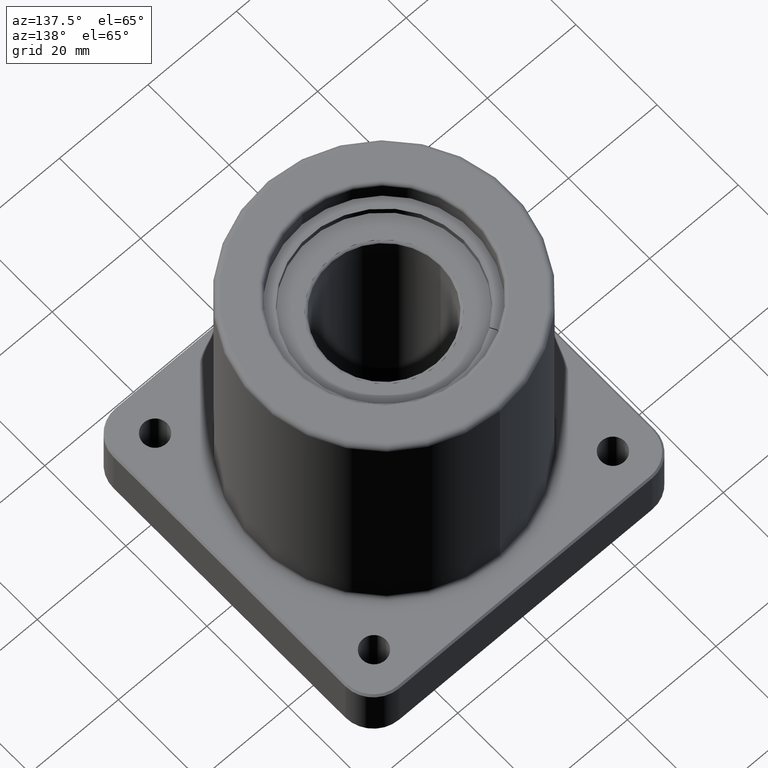
[diagram: clean part render]
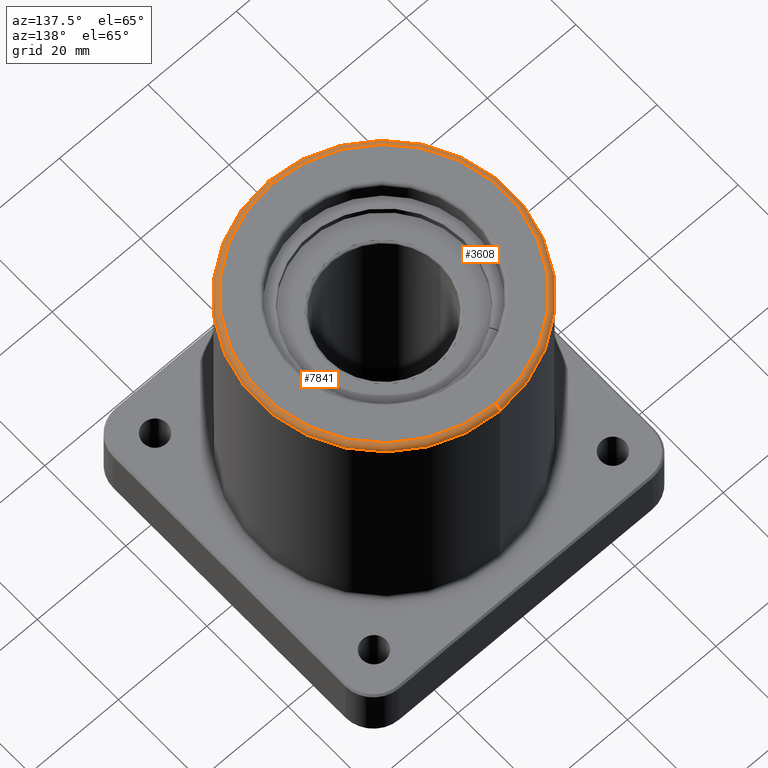
[diagram: same view with one multi-face feature highlighted, each face labeled with its STEP entity id]
A machine part, auxiliary view. The highlighted faces form ONE feature: a constant-radius fillet chain: 2 tangent blend faces with common blend radius 1.143 mm. The faces share edges in the B-rep.
Their STEP definitions:
[1] entity #7841 (Torus):
#2 = DIRECTION ( 'NONE',  ( -1.000000000000000000, -0.000000000000000000, 0.000000000000000000 ) ) ;
#76 = CIRCLE ( 'NONE', #3082, 0.04500000000000019956 ) ;
#261 = CIRCLE ( 'NONE', #2087, 1.125000000000000222 ) ;
#468 = CARTESIAN_POINT ( 'NONE',  ( 0.000000000000000000, -1.080000000000000737, 2.807000000000000384 ) ) ;
#543 = CARTESIAN_POINT ( 'NONE',  ( 1.350173096059957188E-16, 1.079999999999999849, 2.807000000000000384 ) ) ;
#1119 = CARTESIAN_POINT ( 'NONE',  ( 0.000000000000000000, -4.058875246400557127E-16, 2.807000000000000384 ) ) ;
#1229 = VERTEX_POINT ( 'NONE', #468 ) ;
#1262 = DIRECTION ( 'NONE',  ( 0.000000000000000000, 0.000000000000000000, 1.000000000000000000 ) ) ;
#1296 = CARTESIAN_POINT ( 'NONE',  ( 1.322618543079141740E-16, 1.079999999999999849, 2.762000000000000011 ) ) ;
#1628 = FACE_OUTER_BOUND ( 'NONE', #2882, .T. ) ;
#2087 = AXIS2_PLACEMENT_3D ( 'NONE', #6574, #7769, #3283 ) ;
#2137 = CIRCLE ( 'NONE', #4114, 1.080000000000000293 ) ;
#2197 = CARTESIAN_POINT ( 'NONE',  ( 1.377727649040772882E-16, -1.125000000000000666, 2.762000000000000011 ) ) ;
#2459 = DIRECTION ( 'NONE',  ( 1.224646799147349509E-16, 1.000000000000000000, 0.000000000000000000 ) ) ;
#2606 = EDGE_CURVE ( 'NONE', #1229, #4953, #2137, .T. ) ;
#2882 = EDGE_LOOP ( 'NONE', ( #3508, #6603, #3924, #6196 ) ) ;
#3082 = AXIS2_PLACEMENT_3D ( 'NONE', #6312, #2, #1262 ) ;
#3283 = DIRECTION ( 'NONE',  ( 0.000000000000000000, -1.000000000000000000, 0.000000000000000000 ) ) ;
#3508 = ORIENTED_EDGE ( 'NONE', *, *, #7808, .F. ) ;
#3544 = TOROIDAL_SURFACE ( 'NONE', #4069, 1.080000000000000293, 0.04499999999999999833 ) ;
#3578 = DIRECTION ( 'NONE',  ( 0.000000000000000000, -1.000000000000000000, -1.444403239512299634E-16 ) ) ;
#3924 = ORIENTED_EDGE ( 'NONE', *, *, #2606, .F. ) ;
#4069 = AXIS2_PLACEMENT_3D ( 'NONE', #6133, #6054, #3578 ) ;
#4114 = AXIS2_PLACEMENT_3D ( 'NONE', #1119, #6817, #8203 ) ;
#4133 = CARTESIAN_POINT ( 'NONE',  ( 0.000000000000000000, 1.124999999999999778, 2.762000000000000011 ) ) ;
#4944 = VERTEX_POINT ( 'NONE', #4133 ) ;
#4953 = VERTEX_POINT ( 'NONE', #543 ) ;
#5336 = EDGE_CURVE ( 'NONE', #7383, #1229, #76, .T. ) ;
#6054 = DIRECTION ( 'NONE',  ( 0.000000000000000000, -1.444403239512299634E-16, 1.000000000000000000 ) ) ;
#6133 = CARTESIAN_POINT ( 'NONE',  ( 0.000000000000000000, -3.993877100622503803E-16, 2.762000000000000011 ) ) ;
#6196 = ORIENTED_EDGE ( 'NONE', *, *, #5336, .F. ) ;
#6312 = CARTESIAN_POINT ( 'NONE',  ( 0.000000000000000000, -1.080000000000000737, 2.762000000000000011 ) ) ;
#6574 = CARTESIAN_POINT ( 'NONE',  ( 0.000000000000000000, -3.993877100622503803E-16, 2.762000000000000011 ) ) ;
#6603 = ORIENTED_EDGE ( 'NONE', *, *, #7868, .T. ) ;
#6817 = DIRECTION ( 'NONE',  ( 0.000000000000000000, -1.444403239512299634E-16, 1.000000000000000000 ) ) ;
#7007 = DIRECTION ( 'NONE',  ( 1.000000000000000000, -1.224646799147353207E-16, -1.768883803946805423E-32 ) ) ;
#7331 = CIRCLE ( 'NONE', #7734, 0.04500000000000006772 ) ;
#7383 = VERTEX_POINT ( 'NONE', #2197 ) ;
#7734 = AXIS2_PLACEMENT_3D ( 'NONE', #1296, #7007, #2459 ) ;
#7769 = DIRECTION ( 'NONE',  ( -0.000000000000000000, 1.444403239512299634E-16, -1.000000000000000000 ) ) ;
#7808 = EDGE_CURVE ( 'NONE', #4944, #7383, #261, .T. ) ;
#7841 = ADVANCED_FACE ( 'NONE', ( #1628 ), #3544, .T. ) ;
#7868 = EDGE_CURVE ( 'NONE', #4944, #4953, #7331, .T. ) ;
#8203 = DIRECTION ( 'NONE',  ( 0.000000000000000000, -1.000000000000000000, 0.000000000000000000 ) ) ;
[2] entity #3608 (Torus):
#2 = DIRECTION ( 'NONE',  ( -1.000000000000000000, -0.000000000000000000, 0.000000000000000000 ) ) ;
#76 = CIRCLE ( 'NONE', #3082, 0.04500000000000019956 ) ;
#272 = AXIS2_PLACEMENT_3D ( 'NONE', #6622, #2722, #5983 ) ;
#468 = CARTESIAN_POINT ( 'NONE',  ( 0.000000000000000000, -1.080000000000000737, 2.807000000000000384 ) ) ;
#543 = CARTESIAN_POINT ( 'NONE',  ( 1.350173096059957188E-16, 1.079999999999999849, 2.807000000000000384 ) ) ;
#949 = CARTESIAN_POINT ( 'NONE',  ( 0.000000000000000000, -3.993877100622503803E-16, 2.762000000000000011 ) ) ;
#1229 = VERTEX_POINT ( 'NONE', #468 ) ;
#1262 = DIRECTION ( 'NONE',  ( 0.000000000000000000, 0.000000000000000000, 1.000000000000000000 ) ) ;
#1296 = CARTESIAN_POINT ( 'NONE',  ( 1.322618543079141740E-16, 1.079999999999999849, 2.762000000000000011 ) ) ;
#1676 = DIRECTION ( 'NONE',  ( 0.000000000000000000, -1.000000000000000000, 0.000000000000000000 ) ) ;
#1831 = EDGE_LOOP ( 'NONE', ( #3091, #5323, #3107, #2059 ) ) ;
#2059 = ORIENTED_EDGE ( 'NONE', *, *, #6858, .F. ) ;
#2197 = CARTESIAN_POINT ( 'NONE',  ( 1.377727649040772882E-16, -1.125000000000000666, 2.762000000000000011 ) ) ;
#2459 = DIRECTION ( 'NONE',  ( 1.224646799147349509E-16, 1.000000000000000000, 0.000000000000000000 ) ) ;
#2694 = FACE_OUTER_BOUND ( 'NONE', #1831, .T. ) ;
#2722 = DIRECTION ( 'NONE',  ( 0.000000000000000000, -1.444403239512299634E-16, 1.000000000000000000 ) ) ;
#3082 = AXIS2_PLACEMENT_3D ( 'NONE', #6312, #2, #1262 ) ;
#3091 = ORIENTED_EDGE ( 'NONE', *, *, #7868, .F. ) ;
#3107 = ORIENTED_EDGE ( 'NONE', *, *, #5336, .T. ) ;
#3608 = ADVANCED_FACE ( 'NONE', ( #2694 ), #7328, .T. ) ;
#4063 = DIRECTION ( 'NONE',  ( 0.000000000000000000, -1.444403239512299634E-16, 1.000000000000000000 ) ) ;
#4133 = CARTESIAN_POINT ( 'NONE',  ( 0.000000000000000000, 1.124999999999999778, 2.762000000000000011 ) ) ;
#4499 = CIRCLE ( 'NONE', #272, 1.080000000000000293 ) ;
#4944 = VERTEX_POINT ( 'NONE', #4133 ) ;
#4953 = VERTEX_POINT ( 'NONE', #543 ) ;
#5198 = CARTESIAN_POINT ( 'NONE',  ( 0.000000000000000000, -3.993877100622503803E-16, 2.762000000000000011 ) ) ;
#5323 = ORIENTED_EDGE ( 'NONE', *, *, #7550, .F. ) ;
#5336 = EDGE_CURVE ( 'NONE', #7383, #1229, #76, .T. ) ;
#5474 = DIRECTION ( 'NONE',  ( -0.000000000000000000, 1.444403239512299634E-16, -1.000000000000000000 ) ) ;
#5548 = CIRCLE ( 'NONE', #6910, 1.125000000000000222 ) ;
#5870 = DIRECTION ( 'NONE',  ( 0.000000000000000000, -1.000000000000000000, -1.444403239512299634E-16 ) ) ;
#5983 = DIRECTION ( 'NONE',  ( 0.000000000000000000, -1.000000000000000000, 0.000000000000000000 ) ) ;
#6312 = CARTESIAN_POINT ( 'NONE',  ( 0.000000000000000000, -1.080000000000000737, 2.762000000000000011 ) ) ;
#6622 = CARTESIAN_POINT ( 'NONE',  ( 0.000000000000000000, -4.058875246400557127E-16, 2.807000000000000384 ) ) ;
#6858 = EDGE_CURVE ( 'NONE', #4953, #1229, #4499, .T. ) ;
#6910 = AXIS2_PLACEMENT_3D ( 'NONE', #949, #5474, #1676 ) ;
#6923 = AXIS2_PLACEMENT_3D ( 'NONE', #5198, #4063, #5870 ) ;
#7007 = DIRECTION ( 'NONE',  ( 1.000000000000000000, -1.224646799147353207E-16, -1.768883803946805423E-32 ) ) ;
#7328 = TOROIDAL_SURFACE ( 'NONE', #6923, 1.080000000000000293, 0.04499999999999999833 ) ;
#7331 = CIRCLE ( 'NONE', #7734, 0.04500000000000006772 ) ;
#7383 = VERTEX_POINT ( 'NONE', #2197 ) ;
#7550 = EDGE_CURVE ( 'NONE', #7383, #4944, #5548, .T. ) ;
#7734 = AXIS2_PLACEMENT_3D ( 'NONE', #1296, #7007, #2459 ) ;
#7868 = EDGE_CURVE ( 'NONE', #4944, #4953, #7331, .T. ) ;